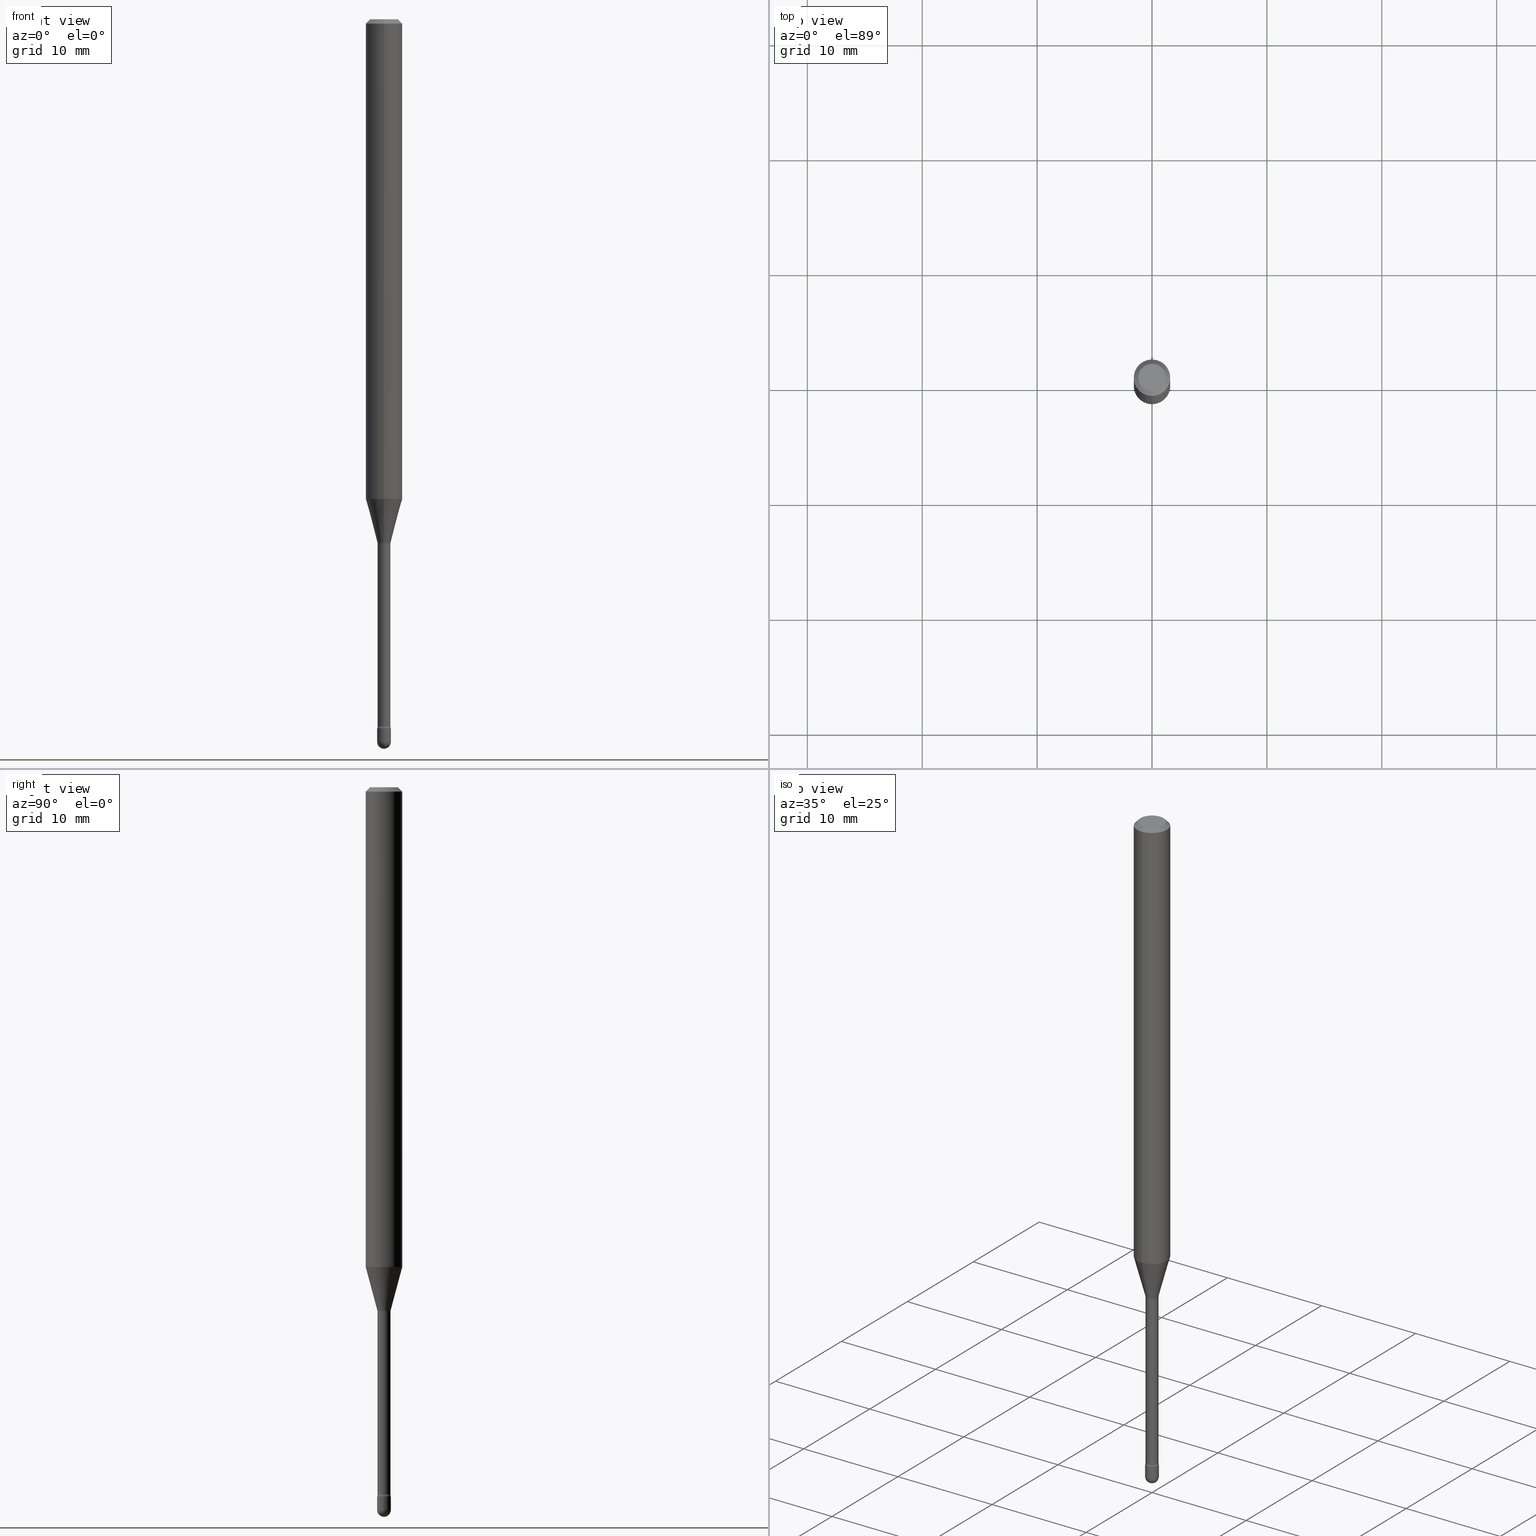
[diagram: canonical four-view strip — front | top / right | iso, engineering-drawing reading convention]
A machine part, canonical four-view strip (front | top / right | iso — engineering-drawing reading convention). The complete STEP part file that produces these views, byte-faithful:
ISO-10303-21;
HEADER;
FILE_DESCRIPTION (( 'STEP AP203' ),
    '1' );
FILE_NAME ('03922.STEP',
    '2024-04-09T21:11:27',
    ( '' ),
    ( '' ),
    'SwSTEP 2.0',
    'SolidWorks 2023',
    '' );
FILE_SCHEMA (( 'CONFIG_CONTROL_DESIGN' ));
ENDSEC;

DATA;
#1 = PERSON_AND_ORGANIZATION ( #202, #343 ) ;
#2 = ORIENTED_EDGE ( 'NONE', *, *, #292, .F. ) ;
#3 = DIRECTION ( 'NONE',  ( -6.982962677686266711E-15, -1.000000000000000000, 3.491503014300162724E-15 ) ) ;
#4 = VECTOR ( 'NONE', #22, 39.37007874015748143 ) ;
#5 = PRODUCT_RELATED_PRODUCT_CATEGORY ( 'detail', '', ( #532 ) ) ;
#6 = APPROVAL_DATE_TIME ( #47, #171 ) ;
#7 = CARTESIAN_POINT ( 'NONE',  ( -3.773273898774340269E-16, -0.04749999999999999362, 8.310039069192064887E-17 ) ) ;
#8 = DIRECTION ( 'NONE',  ( -6.982962677686265922E-15, -1.000000000000000000, 3.491503014300161935E-15 ) ) ;
#9 = EDGE_LOOP ( 'NONE', ( #392, #483, #331, #529 ) ) ;
#10 = EDGE_CURVE ( 'NONE', #177, #106, #382, .T. ) ;
#11 = EDGE_CURVE ( 'NONE', #189, #521, #554, .T. ) ;
#12 = CALENDAR_DATE ( 2024, 9, 4 ) ;
#13 = DIRECTION ( 'NONE',  ( -1.807323732225328562E-15, -0.2588190451025179639, 0.9659258262890689783 ) ) ;
#14 = VERTEX_POINT ( 'NONE', #7 ) ;
#15 = APPROVAL_ROLE ( '' ) ;
#16 = SPHERICAL_SURFACE ( 'NONE', #27, 0.02349999999999995148 ) ;
#17 = DIRECTION ( 'NONE',  ( -1.000000000000000000, 6.982962677686265922E-15, -4.883557194083112340E-29 ) ) ;
#18 = ORIENTED_EDGE ( 'NONE', *, *, #457, .T. ) ;
#19 = AXIS2_PLACEMENT_3D ( 'NONE', #367, #153, #357 ) ;
#20 = LOCAL_TIME ( 17, 11, 27.00000000000000000, #87 ) ;
#21 = DIRECTION ( 'NONE',  ( 1.839019923739599526E-15, 0.2588190451025248473, 0.9659258262890673130 ) ) ;
#22 = DIRECTION ( 'NONE',  ( -2.445453670294399760E-29, 3.491503014300162329E-15, 1.000000000000000000 ) ) ;
#23 = ORIENTED_EDGE ( 'NONE', *, *, #427, .T. ) ;
#24 =( NAMED_UNIT ( * ) PLANE_ANGLE_UNIT ( ) SI_UNIT ( $, .RADIAN. ) );
#25 = VERTEX_POINT ( 'NONE', #309 ) ;
#26 = CLOSED_SHELL ( 'NONE', ( #338, #364, #376, #165, #333, #244, #235, #507, #513, #64, #197, #536, #29, #313 ) ) ;
#27 = AXIS2_PLACEMENT_3D ( 'NONE', #535, #259, #312 ) ;
#28 = PRODUCT_DEFINITION ( 'UNKNOWN', '', #240, #308 ) ;
#29 = ADVANCED_FACE ( 'NONE', ( #232 ), #305, .T. ) ;
#30 = FACE_OUTER_BOUND ( 'NONE', #354, .T. ) ;
#31 = PERSON_AND_ORGANIZATION ( #202, #343 ) ;
#32 = DIRECTION ( 'NONE',  ( -6.982962677686265922E-15, -1.000000000000000000, 0.000000000000000000 ) ) ;
#33 = CC_DESIGN_DATE_AND_TIME_ASSIGNMENT ( #482, #360, ( #28 ) ) ;
#34 = CIRCLE ( 'NONE', #346, 0.02350000000000000352 ) ;
#35 = SECURITY_CLASSIFICATION ( '', '', #53 ) ;
#36 = DIRECTION ( 'NONE',  ( -2.445453670294399480E-29, 3.491503014300162329E-15, 1.000000000000000000 ) ) ;
#37 = ADVANCED_FACE ( 'NONE', ( #267 ), #564, .T. ) ;
#38 = CARTESIAN_POINT ( 'NONE',  ( 1.570299446030416374E-16, 0.02209999999999372536, -1.796974787463811118 ) ) ;
#39 = DIRECTION ( 'NONE',  ( -6.982962677686265922E-15, -1.000000000000000000, 4.370956789862821150E-15 ) ) ;
#40 = CIRCLE ( 'NONE', #251, 0.06250000000000000000 ) ;
#41 = DIRECTION ( 'NONE',  ( -2.445453670294399480E-29, 3.491503014300162329E-15, 1.000000000000000000 ) ) ;
#42 = CARTESIAN_POINT ( 'NONE',  ( 4.440892098500625669E-16, 0.06250000000000000000, 2.598544604974859177E-16 ) ) ;
#43 = FACE_OUTER_BOUND ( 'NONE', #196, .T. ) ;
#44 = DIRECTION ( 'NONE',  ( 6.982962677686265922E-15, 1.000000000000000000, -3.491503014300162329E-15 ) ) ;
#45 = FACE_OUTER_BOUND ( 'NONE', #485, .T. ) ;
#46 = EDGE_LOOP ( 'NONE', ( #347, #23, #336, #496 ) ) ;
#47 = DATE_AND_TIME ( #218, #79 ) ;
#48 = VERTEX_POINT ( 'NONE', #480 ) ;
#49 = CARTESIAN_POINT ( 'NONE',  ( 6.056203498517491033E-29, -8.646653535645050331E-15, -2.476500000000000146 ) ) ;
#50 = ORIENTED_EDGE ( 'NONE', *, *, #476, .F. ) ;
#51 = VECTOR ( 'NONE', #528, 39.37007874015748143 ) ;
#52 = EDGE_CURVE ( 'NONE', #97, #236, #522, .T. ) ;
#53 = SECURITY_CLASSIFICATION_LEVEL ( 'unclassified' ) ;
#54 = DIRECTION ( 'NONE',  ( -2.445453670294399480E-29, 3.491503014300162329E-15, 1.000000000000000000 ) ) ;
#55 = ORIENTED_EDGE ( 'NONE', *, *, #374, .T. ) ;
#56 = DIRECTION ( 'NONE',  ( -6.982962677686265922E-15, -1.000000000000000000, 3.491503014300162724E-15 ) ) ;
#57 = PERSON_AND_ORGANIZATION ( #202, #343 ) ;
#58 = DIRECTION ( 'NONE',  ( -2.445453670294399480E-29, 3.491503014300162329E-15, 1.000000000000000000 ) ) ;
#59 = DIRECTION ( 'NONE',  ( -6.982962677686265922E-15, -1.000000000000000000, 3.491503014300162724E-15 ) ) ;
#60 = ORIENTED_EDGE ( 'NONE', *, *, #10, .F. ) ;
#61 = LENGTH_MEASURE_WITH_UNIT ( LENGTH_MEASURE( 0.02539999999999999897 ), #493 );
#62 = PERSON_AND_ORGANIZATION ( #202, #343 ) ;
#63 = DIRECTION ( 'NONE',  ( 1.000000000000000000, -6.982962677686269866E-15, 0.000000000000000000 ) ) ;
#64 = ADVANCED_FACE ( 'NONE', ( #255 ), #439, .F. ) ;
#65 = EDGE_LOOP ( 'NONE', ( #499, #361, #314, #307 ) ) ;
#66 = AXIS2_PLACEMENT_3D ( 'NONE', #227, #17, #282 ) ;
#67 = LOCAL_TIME ( 17, 11, 27.00000000000000000, #95 ) ;
#68 = DIRECTION ( 'NONE',  ( 2.445453670294399480E-29, -3.491503014300162329E-15, -1.000000000000000000 ) ) ;
#69 = VERTEX_POINT ( 'NONE', #183 ) ;
#70 = VERTEX_POINT ( 'NONE', #134 ) ;
#71 = CIRCLE ( 'NONE', #19, 0.06250000000000000000 ) ;
#72 = CIRCLE ( 'NONE', #436, 0.06250000000000000000 ) ;
#73 = ADVANCED_FACE ( 'NONE', ( #101 ), #16, .T. ) ;
#74 = CARTESIAN_POINT ( 'NONE',  ( 0.02350000000000000699, -8.727830476773153796E-15, -2.476500000000000590 ) ) ;
#75 = PLANE ( 'NONE',  #231 ) ;
#76 = CARTESIAN_POINT ( 'NONE',  ( -4.364351673553912750E-16, -0.06250000000000005551, -0.01499999999999986587 ) ) ;
#77 = CC_DESIGN_PERSON_AND_ORGANIZATION_ASSIGNMENT ( #272, #526, ( #28 ) ) ;
#78 = AXIS2_PLACEMENT_3D ( 'NONE', #219, #527, #44 ) ;
#79 = LOCAL_TIME ( 17, 11, 27.00000000000000000, #212 ) ;
#80 = DIRECTION ( 'NONE',  ( 1.000000000000000000, -7.105427357601001070E-15, 4.926315773989872742E-29 ) ) ;
#81 = LINE ( 'NONE', #85, #156 ) ;
#82 = EDGE_LOOP ( 'NONE', ( #220, #327, #170, #370 ) ) ;
#83 = EDGE_CURVE ( 'NONE', #48, #14, #394, .T. ) ;
#84 = AXIS2_PLACEMENT_3D ( 'NONE', #195, #399, #102 ) ;
#85 = CARTESIAN_POINT ( 'NONE',  ( -0.02350000000000000352, 1.669775429036235687E-16, -1.155949746209903035E-30 ) ) ;
#86 = ORIENTED_EDGE ( 'NONE', *, *, #225, .T. ) ;
#87 = COORDINATED_UNIVERSAL_TIME_OFFSET ( 5, 0, .BEHIND. ) ;
#88 = ORIENTED_EDGE ( 'NONE', *, *, #113, .F. ) ;
#89 = DIRECTION ( 'NONE',  ( -2.445468806185136597E-29, 3.491481338843145583E-15, 1.000000000000000000 ) ) ;
#90 = ORIENTED_EDGE ( 'NONE', *, *, #457, .F. ) ;
#91 = CARTESIAN_POINT ( 'NONE',  ( 0.000000000000000000, 0.000000000000000000, 0.000000000000000000 ) ) ;
#92 = EDGE_CURVE ( 'NONE', #97, #525, #128, .T. ) ;
#93 = ORIENTED_EDGE ( 'NONE', *, *, #469, .F. ) ;
#94 = CARTESIAN_POINT ( 'NONE',  ( 3.023754139721142721E-16, 0.02261111260565773148, -1.793092501787273196 ) ) ;
#95 = COORDINATED_UNIVERSAL_TIME_OFFSET ( 5, 0, .BEHIND. ) ;
#96 = VECTOR ( 'NONE', #519, 39.37007874015748143 ) ;
#97 = VERTEX_POINT ( 'NONE', #406 ) ;
#98 = CARTESIAN_POINT ( 'NONE',  ( 6.056203498517492154E-29, -8.646653535645053486E-15, -2.476500000000000590 ) ) ;
#99 = APPROVAL_PERSON_ORGANIZATION ( #31, #171, #15 ) ;
#100 = ORIENTED_EDGE ( 'NONE', *, *, #395, .T. ) ;
#101 = FACE_OUTER_BOUND ( 'NONE', #65, .T. ) ;
#102 = DIRECTION ( 'NONE',  ( -6.982962677686265922E-15, -1.000000000000000000, 3.491503014300164301E-15 ) ) ;
#103 = VERTEX_POINT ( 'NONE', #187 ) ;
#104 = ORIENTED_EDGE ( 'NONE', *, *, #127, .T. ) ;
#105 = CARTESIAN_POINT ( 'NONE',  ( 5.924532826852824023E-29, -8.458767579426945041E-15, -2.422672283192177645 ) ) ;
#106 = VERTEX_POINT ( 'NONE', #243 ) ;
#107 = LINE ( 'NONE', #401, #451 ) ;
#108 = DIRECTION ( 'NONE',  ( -6.982962677686265922E-15, -1.000000000000000000, 3.491503014300162724E-15 ) ) ;
#109 = ORIENTED_EDGE ( 'NONE', *, *, #469, .T. ) ;
#110 = CIRCLE ( 'NONE', #423, 0.02210000000000008138 ) ;
#111 = AXIS2_PLACEMENT_3D ( 'NONE', #478, #89, #256 ) ;
#112 = ORIENTED_EDGE ( 'NONE', *, *, #114, .T. ) ;
#113 = EDGE_CURVE ( 'NONE', #525, #103, #281, .T. ) ;
#114 = EDGE_CURVE ( 'NONE', #185, #430, #155, .T. ) ;
#115 = APPLICATION_PROTOCOL_DEFINITION ( 'international standard', 'config_control_design', 1994, #348 ) ;
#116 = SPHERICAL_SURFACE ( 'NONE', #359, 0.02349999999999995148 ) ;
#117 = AXIS2_PLACEMENT_3D ( 'NONE', #298, #301, #32 ) ;
#118 = CARTESIAN_POINT ( 'NONE',  ( 4.440892098501030453E-16, 0.06249999999999995143, -0.01500000000000030129 ) ) ;
#119 = ORIENTED_EDGE ( 'NONE', *, *, #386, .T. ) ;
#120 = VECTOR ( 'NONE', #13, 39.37007874015749564 ) ;
#121 = CIRCLE ( 'NONE', #111, 0.02350000000000000699 ) ;
#122 = CARTESIAN_POINT ( 'NONE',  ( -1.543234751768667826E-16, -0.02210000000000004322, 5.552356155072798907E-16 ) ) ;
#123 = ORIENTED_EDGE ( 'NONE', *, *, #11, .T. ) ;
#124 = PERSON_AND_ORGANIZATION_ROLE ( 'design_owner' ) ;
#125 = CARTESIAN_POINT ( 'NONE',  ( 5.940006965145096755E-29, -8.480860821735094994E-15, -2.429000000000000270 ) ) ;
#126 = CARTESIAN_POINT ( 'NONE',  ( 4.384924639673054257E-29, -6.260587874909283975E-15, -1.793092501787273196 ) ) ;
#127 = EDGE_CURVE ( 'NONE', #185, #177, #194, .T. ) ;
#128 = CIRCLE ( 'NONE', #245, 0.02261111260566398690 ) ;
#129 = AXIS2_PLACEMENT_3D ( 'NONE', #389, #565, #169 ) ;
#130 = ORIENTED_EDGE ( 'NONE', *, *, #534, .T. ) ;
#131 = CARTESIAN_POINT ( 'NONE',  ( 4.384924639673054257E-29, -6.260587874909283975E-15, -1.793092501787273196 ) ) ;
#132 = EDGE_CURVE ( 'NONE', #25, #521, #538, .T. ) ;
#133 = ORIENTED_EDGE ( 'NONE', *, *, #509, .T. ) ;
#134 = CARTESIAN_POINT ( 'NONE',  ( -1.543234751768078153E-16, -0.02210000000000854337, -2.422672283192177645 ) ) ;
#135 = ORIENTED_EDGE ( 'NONE', *, *, #509, .F. ) ;
#136 = CARTESIAN_POINT ( 'NONE',  ( 5.924569496155794395E-29, -8.458715066898005273E-15, -2.422672283192177645 ) ) ;
#137 = COORDINATED_UNIVERSAL_TIME_OFFSET ( 5, 0, .BEHIND. ) ;
#138 = VECTOR ( 'NONE', #152, 39.37007874015748143 ) ;
#139 = EDGE_LOOP ( 'NONE', ( #100, #151, #488, #254 ) ) ;
#140 = CARTESIAN_POINT ( 'NONE',  ( 4.394445788243915811E-29, -6.274103936801524027E-15, -1.796974787463811118 ) ) ;
#141 = CC_DESIGN_APPROVAL ( #193, ( #35 ) ) ;
#142 = ORIENTED_EDGE ( 'NONE', *, *, #431, .T. ) ;
#143 = EDGE_LOOP ( 'NONE', ( #175, #368, #55, #104, #275 ) ) ;
#144 = DIRECTION ( 'NONE',  ( -6.982962677686265922E-15, -1.000000000000000000, 3.491503014300162724E-15 ) ) ;
#145 = ORIENTED_EDGE ( 'NONE', *, *, #446, .T. ) ;
#146 = ADVANCED_BREP_SHAPE_REPRESENTATION ( '03922', ( #247, #241, #283 ), #316 ) ;
#147 = ADVANCED_FACE ( 'NONE', ( #366 ), #116, .T. ) ;
#148 = DIRECTION ( 'NONE',  ( -6.982962677686265922E-15, -1.000000000000000000, 3.483106191921935554E-15 ) ) ;
#149 = PERSON_AND_ORGANIZATION_ROLE ( 'classification_officer' ) ;
#150 = FACE_OUTER_BOUND ( 'NONE', #537, .T. ) ;
#151 = ORIENTED_EDGE ( 'NONE', *, *, #557, .T. ) ;
#152 = DIRECTION ( 'NONE',  ( -2.445468806185136877E-29, 3.491481338843145188E-15, 1.000000000000000000 ) ) ;
#153 = DIRECTION ( 'NONE',  ( -2.445453670294399480E-29, 3.491503014300162329E-15, 1.000000000000000000 ) ) ;
#154 = ORIENTED_EDGE ( 'NONE', *, *, #238, .F. ) ;
#155 = CIRCLE ( 'NONE', #216, 0.02350000000000000699 ) ;
#156 = VECTOR ( 'NONE', #260, 39.37007874015748143 ) ;
#157 = DIRECTION ( 'NONE',  ( -1.000000000000000000, 6.982962677686265922E-15, -4.883557194083111780E-29 ) ) ;
#158 = ADVANCED_FACE ( 'NONE', ( #505 ), #198, .T. ) ;
#159 = AXIS2_PLACEMENT_3D ( 'NONE', #276, #447, #352 ) ;
#160 = CIRCLE ( 'NONE', #303, 0.01500000000000000291 ) ;
#161 = DIRECTION ( 'NONE',  ( -1.000000000000000000, 6.982962677686265922E-15, -4.883557194083112340E-29 ) ) ;
#162 = CYLINDRICAL_SURFACE ( 'NONE', #129, 0.06250000000000000000 ) ;
#163 = CONICAL_SURFACE ( 'NONE', #215, 0.06250000000000000000, 0.7853981633974483900 ) ;
#164 = CC_DESIGN_APPROVAL ( #171, ( #28 ) ) ;
#165 = ADVANCED_FACE ( 'NONE', ( #287 ), #163, .T. ) ;
#166 = CARTESIAN_POINT ( 'NONE',  ( -4.287811248607203282E-16, -0.06250000000000005551, -0.01499999999999986587 ) ) ;
#167 = DIRECTION ( 'NONE',  ( -6.982962677686265922E-15, -1.000000000000000000, 0.000000000000000000 ) ) ;
#168 = CARTESIAN_POINT ( 'NONE',  ( 0.000000000000000000, 0.000000000000000000, 0.000000000000000000 ) ) ;
#169 = DIRECTION ( 'NONE',  ( -6.982962677686265922E-15, -1.000000000000000000, 3.491503014300161935E-15 ) ) ;
#170 = ORIENTED_EDGE ( 'NONE', *, *, #372, .T. ) ;
#171 = APPROVAL ( #340, 'UNSPECIFIED' ) ;
#172 = AXIS2_PLACEMENT_3D ( 'NONE', #319, #453, #502 ) ;
#173 = LOCAL_TIME ( 17, 11, 27.00000000000000000, #402 ) ;
#174 = CALENDAR_DATE ( 2024, 9, 4 ) ;
#175 = ORIENTED_EDGE ( 'NONE', *, *, #446, .F. ) ;
#176 = LINE ( 'NONE', #206, #96 ) ;
#177 = VERTEX_POINT ( 'NONE', #506 ) ;
#178 = PERSON_AND_ORGANIZATION ( #202, #343 ) ;
#179 = ORIENTED_EDGE ( 'NONE', *, *, #225, .F. ) ;
#180 = ORIENTED_EDGE ( 'NONE', *, *, #419, .T. ) ;
#181 = DIRECTION ( 'NONE',  ( -2.445453670294399760E-29, 3.491503014300162329E-15, 1.000000000000000000 ) ) ;
#182 = PERSON_AND_ORGANIZATION_ROLE ( 'design_supplier' ) ;
#183 = CARTESIAN_POINT ( 'NONE',  ( -1.543234751768225325E-16, -0.02210000000000627435, -1.796974787463811118 ) ) ;
#184 = DIRECTION ( 'NONE',  ( -2.445453670294399480E-29, 3.491503014300162329E-15, 1.000000000000000000 ) ) ;
#185 = VERTEX_POINT ( 'NONE', #74 ) ;
#186 = DATE_TIME_ROLE ( 'classification_date' ) ;
#187 = CARTESIAN_POINT ( 'NONE',  ( 4.440892098501025523E-16, 0.06249999999999423378, -1.644225147374218210 ) ) ;
#188 = CARTESIAN_POINT ( 'NONE',  ( 5.940043730223697314E-29, -8.480808172050001970E-15, -2.429000000000000270 ) ) ;
#189 = VERTEX_POINT ( 'NONE', #553 ) ;
#190 = CARTESIAN_POINT ( 'NONE',  ( 0.000000000000000000, 0.000000000000000000, 0.000000000000000000 ) ) ;
#191 = CARTESIAN_POINT ( 'NONE',  ( -1.640996229255679148E-16, -0.02350000000000848632, -2.429000000000000270 ) ) ;
#192 = ORIENTED_EDGE ( 'NONE', *, *, #113, .T. ) ;
#193 = APPROVAL ( #351, 'UNSPECIFIED' ) ;
#194 = LINE ( 'NONE', #326, #138 ) ;
#195 = CARTESIAN_POINT ( 'NONE',  ( -1.169113584055446105E-44, 1.669184350826100908E-30, 4.780733988912460139E-16 ) ) ;
#196 = EDGE_LOOP ( 'NONE', ( #90, #237, #454, #531 ) ) ;
#197 = ADVANCED_FACE ( 'NONE', ( #30 ), #75, .F. ) ;
#198 = CYLINDRICAL_SURFACE ( 'NONE', #450, 0.02350000000000000352 ) ;
#199 = TOROIDAL_SURFACE ( 'NONE', #280, 0.03710000000000007736, 0.01499999999999999771 ) ;
#200 = AXIS2_PLACEMENT_3D ( 'NONE', #445, #263, #270 ) ;
#201 = DIRECTION ( 'NONE',  ( -2.445468806185136597E-29, 3.491481338843145583E-15, 1.000000000000000000 ) ) ;
#202 = PERSON ( 'UNSPECIFIED', 'UNSPECIFIED', 'UNSPECIFIED', ('UNSPECIFIED'), ('UNSPECIFIED'), ('UNSPECIFIED') ) ;
#203 = DIRECTION ( 'NONE',  ( -2.445453670294399480E-29, 3.491503014300162329E-15, 1.000000000000000000 ) ) ;
#204 = CARTESIAN_POINT ( 'NONE',  ( 1.640996229256866630E-16, 0.02349999999999152073, -2.429000000000000270 ) ) ;
#205 = EDGE_CURVE ( 'NONE', #297, #69, #293, .T. ) ;
#206 = CARTESIAN_POINT ( 'NONE',  ( 4.364351673553919652E-16, 0.06249999999999995143, -0.01500000000000030129 ) ) ;
#207 = VECTOR ( 'NONE', #556, 39.37007874015748143 ) ;
#208 = APPROVAL_PERSON_ORGANIZATION ( #178, #193, #221 ) ;
#209 = DIRECTION ( 'NONE',  ( -6.982962677686264344E-15, -1.000000000000000000, 0.000000000000000000 ) ) ;
#210 = DIRECTION ( 'NONE',  ( 1.000000000000000000, -7.105427357601001070E-15, 4.926315773989872742E-29 ) ) ;
#211 = DIRECTION ( 'NONE',  ( 6.982962677686265922E-15, 1.000000000000000000, 0.000000000000000000 ) ) ;
#212 = COORDINATED_UNIVERSAL_TIME_OFFSET ( 5, 0, .BEHIND. ) ;
#213 = CARTESIAN_POINT ( 'NONE',  ( 2.023442794181180636E-45, -2.889182795652346451E-31, -8.274600248733706275E-17 ) ) ;
#214 = EDGE_LOOP ( 'NONE', ( #2, #323, #481, #109 ) ) ;
#215 = AXIS2_PLACEMENT_3D ( 'NONE', #452, #68, #375 ) ;
#216 = AXIS2_PLACEMENT_3D ( 'NONE', #547, #201, #461 ) ;
#217 = CIRCLE ( 'NONE', #200, 0.02350000000000000352 ) ;
#218 = CALENDAR_DATE ( 2024, 9, 4 ) ;
#219 = CARTESIAN_POINT ( 'NONE',  ( 3.316907271900976096E-16, 0.04749999999999999362, 3.181730502269678861E-17 ) ) ;
#220 = ORIENTED_EDGE ( 'NONE', *, *, #503, .F. ) ;
#221 = APPROVAL_ROLE ( '' ) ;
#222 = DIRECTION ( 'NONE',  ( -6.982962677686265922E-15, -1.000000000000000000, 3.491503014300164301E-15 ) ) ;
#223 = CARTESIAN_POINT ( 'NONE',  ( -1.169113584055446105E-44, 1.669184350826100908E-30, 4.780733988912460139E-16 ) ) ;
#224 = ORIENTED_EDGE ( 'NONE', *, *, #427, .F. ) ;
#225 = EDGE_CURVE ( 'NONE', #542, #70, #486, .T. ) ;
#226 = DIRECTION ( 'NONE',  ( -6.982962677686265922E-15, -1.000000000000000000, 0.000000000000000000 ) ) ;
#227 = CARTESIAN_POINT ( 'NONE',  ( -2.590679153421165676E-16, -0.03710000000000628073, -1.796974787463811118 ) ) ;
#228 = VERTEX_POINT ( 'NONE', #558 ) ;
#229 =( CONVERSION_BASED_UNIT ( 'INCH', #61 ) LENGTH_UNIT ( ) NAMED_UNIT ( #411 ) );
#230 = DATE_AND_TIME ( #174, #67 ) ;
#231 = AXIS2_PLACEMENT_3D ( 'NONE', #204, #380, #562 ) ;
#232 = FACE_OUTER_BOUND ( 'NONE', #504, .T. ) ;
#233 = FACE_OUTER_BOUND ( 'NONE', #9, .T. ) ;
#234 = AXIS2_PLACEMENT_3D ( 'NONE', #125, #41, #302 ) ;
#235 = ADVANCED_FACE ( 'NONE', ( #471 ), #371, .T. ) ;
#236 = VERTEX_POINT ( 'NONE', #473 ) ;
#237 = ORIENTED_EDGE ( 'NONE', *, *, #92, .F. ) ;
#238 = EDGE_CURVE ( 'NONE', #70, #409, #500, .T. ) ;
#239 = AXIS2_PLACEMENT_3D ( 'NONE', #548, #184, #59 ) ;
#240 = PRODUCT_DEFINITION_FORMATION_WITH_SPECIFIED_SOURCE ( 'ANY', '', #532, .NOT_KNOWN. ) ;
#241 = MANIFOLD_SOLID_BREP ( 'Body-Move/Copy2[2]', #26 ) ;
#242 = CC_DESIGN_DATE_AND_TIME_ASSIGNMENT ( #230, #186, ( #35 ) ) ;
#243 = CARTESIAN_POINT ( 'NONE',  ( -0.02350000000000000352, -8.396753310943903641E-15, -2.429000000000000270 ) ) ;
#244 = ADVANCED_FACE ( 'NONE', ( #341 ), #459, .T. ) ;
#245 = AXIS2_PLACEMENT_3D ( 'NONE', #432, #58, #226 ) ;
#246 = TOROIDAL_SURFACE ( 'NONE', #335, 0.03710000000000007736, 0.01499999999999999771 ) ;
#247 = MANIFOLD_SOLID_BREP ( 'Body-Move/Copy2[1]', #264 ) ;
#248 = LINE ( 'NONE', #122, #207 ) ;
#249 = EDGE_CURVE ( 'NONE', #70, #69, #248, .T. ) ;
#250 = CARTESIAN_POINT ( 'NONE',  ( 2.636113549670411553E-16, 0.03709999999999373521, -1.796974787463811118 ) ) ;
#251 = AXIS2_PLACEMENT_3D ( 'NONE', #290, #462, #296 ) ;
#252 = AXIS2_PLACEMENT_3D ( 'NONE', #433, #472, #39 ) ;
#253 = APPLICATION_PROTOCOL_DEFINITION ( 'international standard', 'config_control_design', 1994, #426 ) ;
#254 = ORIENTED_EDGE ( 'NONE', *, *, #249, .F. ) ;
#255 = FACE_OUTER_BOUND ( 'NONE', #540, .T. ) ;
#256 = DIRECTION ( 'NONE',  ( 1.000000000000000000, -6.982962677686227268E-15, 0.000000000000000000 ) ) ;
#257 = DIRECTION ( 'NONE',  ( 0.000000000000000000, 0.000000000000000000, 1.000000000000000000 ) ) ;
#258 = SHAPE_DEFINITION_REPRESENTATION ( #437, #146 ) ;
#259 = DIRECTION ( 'NONE',  ( -1.000000000000000000, 6.982962677686265922E-15, -4.883557194083111780E-29 ) ) ;
#260 = DIRECTION ( 'NONE',  ( -2.445468806185136877E-29, 3.491481338843145188E-15, 1.000000000000000000 ) ) ;
#261 = ORIENTED_EDGE ( 'NONE', *, *, #292, .T. ) ;
#262 = CC_DESIGN_PERSON_AND_ORGANIZATION_ASSIGNMENT ( #391, #544, ( #240 ) ) ;
#263 = DIRECTION ( 'NONE',  ( -2.445453670294399480E-29, 3.491503014300162329E-15, 1.000000000000000000 ) ) ;
#264 = CLOSED_SHELL ( 'NONE', ( #37, #147, #350, #73, #158 ) ) ;
#265 = AXIS2_PLACEMENT_3D ( 'NONE', #126, #510, #167 ) ;
#266 = APPROVAL_ROLE ( '' ) ;
#267 = FACE_OUTER_BOUND ( 'NONE', #404, .T. ) ;
#268 = DIRECTION ( 'NONE',  ( -2.445468806185136597E-29, 3.491481338843145583E-15, 1.000000000000000000 ) ) ;
#269 = VERTEX_POINT ( 'NONE', #118 ) ;
#270 = DIRECTION ( 'NONE',  ( -6.982962677686265922E-15, -1.000000000000000000, 0.000000000000000000 ) ) ;
#271 = EDGE_CURVE ( 'NONE', #236, #103, #40, .T. ) ;
#272 = PERSON_AND_ORGANIZATION ( #202, #343 ) ;
#273 = DIRECTION ( 'NONE',  ( -6.982962677686266711E-15, -1.000000000000000000, 3.491503014300162724E-15 ) ) ;
#274 = LINE ( 'NONE', #530, #4 ) ;
#275 = ORIENTED_EDGE ( 'NONE', *, *, #386, .F. ) ;
#276 = CARTESIAN_POINT ( 'NONE',  ( 6.056203498517491033E-29, -8.646653535645050331E-15, -2.476500000000000146 ) ) ;
#277 = DIRECTION ( 'NONE',  ( -2.445453670294399480E-29, 3.491503014300162329E-15, 1.000000000000000000 ) ) ;
#278 = ORIENTED_EDGE ( 'NONE', *, *, #83, .T. ) ;
#279 = CARTESIAN_POINT ( 'NONE',  ( 3.668180505441619486E-31, -5.237254521450272361E-17, -0.01500000000000008271 ) ) ;
#280 = AXIS2_PLACEMENT_3D ( 'NONE', #362, #541, #144 ) ;
#281 = LINE ( 'NONE', #369, #523 ) ;
#282 = DIRECTION ( 'NONE',  ( -6.982962677686266711E-15, -1.000000000000000000, 0.000000000000000000 ) ) ;
#283 = AXIS2_PLACEMENT_3D ( 'NONE', #91, #257, #466 ) ;
#284 = ORIENTED_EDGE ( 'NONE', *, *, #205, .T. ) ;
#285 = DIRECTION ( 'NONE',  ( -2.445453670294399480E-29, 3.491503014300162329E-15, 1.000000000000000000 ) ) ;
#286 = VERTEX_POINT ( 'NONE', #76 ) ;
#287 = FACE_OUTER_BOUND ( 'NONE', #46, .T. ) ;
#288 = AXIS2_PLACEMENT_3D ( 'NONE', #344, #161, #209 ) ;
#289 = DIRECTION ( 'NONE',  ( 6.982962677686265922E-15, 1.000000000000000000, 0.000000000000000000 ) ) ;
#290 = CARTESIAN_POINT ( 'NONE',  ( 4.020876421436631309E-29, -5.740817058245210280E-15, -1.644225147374217988 ) ) ;
#291 = CC_DESIGN_PERSON_AND_ORGANIZATION_ASSIGNMENT ( #1, #124, ( #532 ) ) ;
#292 = EDGE_CURVE ( 'NONE', #542, #228, #160, .T. ) ;
#293 = CIRCLE ( 'NONE', #117, 0.02210000000000000159 ) ;
#294 = AXIS2_PLACEMENT_3D ( 'NONE', #393, #418, #365 ) ;
#295 = AXIS2_PLACEMENT_3D ( 'NONE', #131, #387, #563 ) ;
#296 = DIRECTION ( 'NONE',  ( -6.982962677686265922E-15, -1.000000000000000000, 4.370956789862821150E-15 ) ) ;
#297 = VERTEX_POINT ( 'NONE', #38 ) ;
#298 = CARTESIAN_POINT ( 'NONE',  ( 4.394418589429875621E-29, -6.274142887051290887E-15, -1.796974787463811118 ) ) ;
#299 = DIRECTION ( 'NONE',  ( -2.445453670294399480E-29, 3.491503014300162329E-15, 1.000000000000000000 ) ) ;
#300 = CC_DESIGN_PERSON_AND_ORGANIZATION_ASSIGNMENT ( #62, #149, ( #35 ) ) ;
#301 = DIRECTION ( 'NONE',  ( -2.445453670294399480E-29, 3.491503014300162329E-15, 1.000000000000000000 ) ) ;
#302 = DIRECTION ( 'NONE',  ( -6.982962677686265922E-15, -1.000000000000000000, 0.000000000000000000 ) ) ;
#303 = AXIS2_PLACEMENT_3D ( 'NONE', #467, #80, #425 ) ;
#304 = CIRCLE ( 'NONE', #421, 0.02349999999999995148 ) ;
#305 = CYLINDRICAL_SURFACE ( 'NONE', #560, 0.02210000000000004322 ) ;
#306 = FACE_OUTER_BOUND ( 'NONE', #82, .T. ) ;
#307 = ORIENTED_EDGE ( 'NONE', *, *, #374, .F. ) ;
#308 = DESIGN_CONTEXT ( 'detailed design', #348, 'design' ) ;
#309 = CARTESIAN_POINT ( 'NONE',  ( -0.02350000000000000699, -8.396753310943903641E-15, -2.476500000000000590 ) ) ;
#310 = CARTESIAN_POINT ( 'NONE',  ( 1.640996229256876491E-16, 0.02349999999999132991, -2.476500000000000590 ) ) ;
#311 = CARTESIAN_POINT ( 'NONE',  ( 1.620037437533624565E-16, 0.02209999999999162287, -2.422672283192177645 ) ) ;
#312 = DIRECTION ( 'NONE',  ( 6.982962677686265922E-15, 1.000000000000000000, 0.000000000000000000 ) ) ;
#313 = ADVANCED_FACE ( 'NONE', ( #43 ), #555, .F. ) ;
#314 = ORIENTED_EDGE ( 'NONE', *, *, #114, .F. ) ;
#315 = CIRCLE ( 'NONE', #66, 0.01500000000000002373 ) ;
#316 =( GEOMETRIC_REPRESENTATION_CONTEXT ( 3 ) GLOBAL_UNCERTAINTY_ASSIGNED_CONTEXT ( ( #390 ) ) GLOBAL_UNIT_ASSIGNED_CONTEXT ( ( #229, #24, #546 ) ) REPRESENTATION_CONTEXT ( 'NONE', 'WORKASPACE' ) );
#317 = APPROVAL_STATUS ( 'not_yet_approved' ) ;
#318 = DIRECTION ( 'NONE',  ( -2.445468806185136597E-29, 3.491481338843145583E-15, 1.000000000000000000 ) ) ;
#319 = CARTESIAN_POINT ( 'NONE',  ( 5.940043730223697314E-29, -8.480808172050001970E-15, -2.429000000000000270 ) ) ;
#320 = ORIENTED_EDGE ( 'NONE', *, *, #205, .F. ) ;
#321 = ORIENTED_EDGE ( 'NONE', *, *, #52, .T. ) ;
#322 = DIRECTION ( 'NONE',  ( -2.445468806185136597E-29, 3.491481338843145583E-15, 1.000000000000000000 ) ) ;
#323 = ORIENTED_EDGE ( 'NONE', *, *, #395, .F. ) ;
#324 = FACE_OUTER_BOUND ( 'NONE', #214, .T. ) ;
#325 = CC_DESIGN_PERSON_AND_ORGANIZATION_ASSIGNMENT ( #57, #182, ( #240 ) ) ;
#326 = CARTESIAN_POINT ( 'NONE',  ( 0.02350000000000000352, -1.640996229256272766E-16, 1.145901542312045115E-30 ) ) ;
#327 = ORIENTED_EDGE ( 'NONE', *, *, #470, .T. ) ;
#328 = CIRCLE ( 'NONE', #342, 0.02210000000000000159 ) ;
#329 = DIRECTION ( 'NONE',  ( -2.445468806185136597E-29, 3.491481338843145583E-15, 1.000000000000000000 ) ) ;
#330 = CIRCLE ( 'NONE', #295, 0.02261111260566398690 ) ;
#331 = ORIENTED_EDGE ( 'NONE', *, *, #520, .F. ) ;
#332 = EDGE_CURVE ( 'NONE', #269, #286, #71, .T. ) ;
#333 = ADVANCED_FACE ( 'NONE', ( #233 ), #353, .T. ) ;
#334 = AXIS2_PLACEMENT_3D ( 'NONE', #223, #416, #8 ) ;
#335 = AXIS2_PLACEMENT_3D ( 'NONE', #136, #285, #56 ) ;
#336 = ORIENTED_EDGE ( 'NONE', *, *, #520, .T. ) ;
#337 = EDGE_CURVE ( 'NONE', #97, #69, #315, .T. ) ;
#338 = ADVANCED_FACE ( 'NONE', ( #414 ), #410, .F. ) ;
#339 = DIRECTION ( 'NONE',  ( -6.982962677686265922E-15, -1.000000000000000000, 0.000000000000000000 ) ) ;
#340 = APPROVAL_STATUS ( 'not_yet_approved' ) ;
#341 = FACE_OUTER_BOUND ( 'NONE', #417, .T. ) ;
#342 = AXIS2_PLACEMENT_3D ( 'NONE', #516, #299, #514 ) ;
#343 = ORGANIZATION ( 'UNSPECIFIED', 'UNSPECIFIED', '' ) ;
#344 = CARTESIAN_POINT ( 'NONE',  ( -2.590679153421017765E-16, -0.03710000000000854281, -2.422672283192177645 ) ) ;
#345 = DIRECTION ( 'NONE',  ( 1.000000000000000000, -6.982962677686265922E-15, 4.876176775795935793E-29 ) ) ;
#346 = AXIS2_PLACEMENT_3D ( 'NONE', #188, #322, #495 ) ;
#347 = ORIENTED_EDGE ( 'NONE', *, *, #431, .F. ) ;
#348 = APPLICATION_CONTEXT ( 'configuration controlled 3d designs of mechanical parts and assemblies' ) ;
#349 = CARTESIAN_POINT ( 'NONE',  ( 5.940043730223697314E-29, -8.480808172050001970E-15, -2.429000000000000270 ) ) ;
#350 = ADVANCED_FACE ( 'NONE', ( #150 ), #484, .T. ) ;
#351 = APPROVAL_STATUS ( 'not_yet_approved' ) ;
#352 = DIRECTION ( 'NONE',  ( -7.105427357601001070E-15, -1.000000000000000000, 0.000000000000000000 ) ) ;
#353 = CYLINDRICAL_SURFACE ( 'NONE', #334, 0.06250000000000000000 ) ;
#354 = EDGE_LOOP ( 'NONE', ( #93, #449 ) ) ;
#355 = DATE_AND_TIME ( #12, #173 ) ;
#356 = ORIENTED_EDGE ( 'NONE', *, *, #127, .F. ) ;
#357 = DIRECTION ( 'NONE',  ( -6.982962677686265922E-15, -1.000000000000000000, 3.483106191921935554E-15 ) ) ;
#358 = ORIENTED_EDGE ( 'NONE', *, *, #92, .T. ) ;
#359 = AXIS2_PLACEMENT_3D ( 'NONE', #422, #157, #289 ) ;
#360 = DATE_TIME_ROLE ( 'creation_date' ) ;
#361 = ORIENTED_EDGE ( 'NONE', *, *, #492, .T. ) ;
#362 = CARTESIAN_POINT ( 'NONE',  ( 5.924569496155794395E-29, -8.458715066898005273E-15, -2.422672283192177645 ) ) ;
#363 = ORIENTED_EDGE ( 'NONE', *, *, #557, .F. ) ;
#364 = ADVANCED_FACE ( 'NONE', ( #455 ), #490, .T. ) ;
#365 = DIRECTION ( 'NONE',  ( 6.982962677686265922E-15, 1.000000000000000000, -3.483106191921935554E-15 ) ) ;
#366 = FACE_OUTER_BOUND ( 'NONE', #494, .T. ) ;
#367 = CARTESIAN_POINT ( 'NONE',  ( 3.668180505441619486E-31, -5.237254521450272361E-17, -0.01500000000000008271 ) ) ;
#368 = ORIENTED_EDGE ( 'NONE', *, *, #132, .T. ) ;
#369 = CARTESIAN_POINT ( 'NONE',  ( 1.606616180941255974E-16, 0.02261111260565772454, -1.793092501787273196 ) ) ;
#370 = ORIENTED_EDGE ( 'NONE', *, *, #332, .F. ) ;
#371 = CONICAL_SURFACE ( 'NONE', #265, 0.02261111260566398690, 0.2617993877991501295 ) ;
#372 = EDGE_CURVE ( 'NONE', #236, #286, #274, .T. ) ;
#373 = CARTESIAN_POINT ( 'NONE',  ( 6.056203498517492154E-29, -8.646653535645053486E-15, -2.476500000000000590 ) ) ;
#374 = EDGE_CURVE ( 'NONE', #521, #185, #435, .T. ) ;
#375 = DIRECTION ( 'NONE',  ( 6.982962677686265922E-15, 1.000000000000000000, -3.483106191921935554E-15 ) ) ;
#376 = ADVANCED_FACE ( 'NONE', ( #407 ), #199, .F. ) ;
#377 = DIRECTION ( 'NONE',  ( -6.982962677686265922E-15, -1.000000000000000000, 0.000000000000000000 ) ) ;
#378 = AXIS2_PLACEMENT_3D ( 'NONE', #98, #268, #440 ) ;
#379 = CIRCLE ( 'NONE', #234, 0.02350000000000000352 ) ;
#380 = DIRECTION ( 'NONE',  ( -2.445453670294399199E-29, 3.491503014300162329E-15, 1.000000000000000000 ) ) ;
#381 = DIRECTION ( 'NONE',  ( -2.445453670294399760E-29, 3.491503014300162329E-15, 1.000000000000000000 ) ) ;
#382 = CIRCLE ( 'NONE', #458, 0.02350000000000000352 ) ;
#383 = DIRECTION ( 'NONE',  ( -2.445453670294399480E-29, 3.491503014300162329E-15, 1.000000000000000000 ) ) ;
#384 = AXIS2_PLACEMENT_3D ( 'NONE', #168, #477, #345 ) ;
#385 = CC_DESIGN_APPROVAL ( #408, ( #240 ) ) ;
#386 = EDGE_CURVE ( 'NONE', #106, #177, #34, .T. ) ;
#387 = DIRECTION ( 'NONE',  ( -2.445453670294399480E-29, 3.491503014300162329E-15, 1.000000000000000000 ) ) ;
#388 = ORIENTED_EDGE ( 'NONE', *, *, #470, .F. ) ;
#389 = CARTESIAN_POINT ( 'NONE',  ( -1.169113584055446105E-44, 1.669184350826100908E-30, 4.780733988912460139E-16 ) ) ;
#390 = UNCERTAINTY_MEASURE_WITH_UNIT (LENGTH_MEASURE( 1.000000000000000082E-05 ), #229, 'distance_accuracy_value', 'NONE');
#391 = PERSON_AND_ORGANIZATION ( #202, #343 ) ;
#392 = ORIENTED_EDGE ( 'NONE', *, *, #271, .T. ) ;
#393 = CARTESIAN_POINT ( 'NONE',  ( 3.668180505441619486E-31, -5.237254521450272361E-17, -0.01500000000000008271 ) ) ;
#394 = CIRCLE ( 'NONE', #464, 0.04749999999999999362 ) ;
#395 = EDGE_CURVE ( 'NONE', #70, #542, #110, .T. ) ;
#396 = CIRCLE ( 'NONE', #465, 0.04749999999999999362 ) ;
#397 = CALENDAR_DATE ( 2024, 9, 4 ) ;
#398 = ORIENTED_EDGE ( 'NONE', *, *, #83, .F. ) ;
#399 = DIRECTION ( 'NONE',  ( -2.445453670294399480E-29, 3.491503014300162329E-15, 1.000000000000000000 ) ) ;
#400 = ORIENTED_EDGE ( 'NONE', *, *, #249, .T. ) ;
#401 = CARTESIAN_POINT ( 'NONE',  ( 1.570299446029824235E-16, 0.02210000000000004322, 4.009111822752123344E-16 ) ) ;
#402 = COORDINATED_UNIVERSAL_TIME_OFFSET ( 5, 0, .BEHIND. ) ;
#403 = CARTESIAN_POINT ( 'NONE',  ( -1.578925554262692203E-16, -0.02261111260567024925, -1.793092501787273196 ) ) ;
#404 = EDGE_LOOP ( 'NONE', ( #133, #145, #60, #356, #112 ) ) ;
#405 = APPROVAL_DATE_TIME ( #533, #408 ) ;
#406 = CARTESIAN_POINT ( 'NONE',  ( -1.578925554262692203E-16, -0.02261111260567024925, -1.793092501787273196 ) ) ;
#407 = FACE_OUTER_BOUND ( 'NONE', #456, .T. ) ;
#408 = APPROVAL ( #317, 'UNSPECIFIED' ) ;
#409 = VERTEX_POINT ( 'NONE', #191 ) ;
#410 = TOROIDAL_SURFACE ( 'NONE', #511, 0.03710000000000000797, 0.01500000000000002720 ) ;
#411 = DIMENSIONAL_EXPONENTS ( 1.000000000000000000, 0.000000000000000000, 0.000000000000000000, 0.000000000000000000, 0.000000000000000000, 0.000000000000000000, 0.000000000000000000 ) ;
#412 = APPROVAL_DATE_TIME ( #355, #193 ) ;
#413 = EDGE_CURVE ( 'NONE', #69, #297, #328, .T. ) ;
#414 = FACE_OUTER_BOUND ( 'NONE', #545, .T. ) ;
#415 = ORIENTED_EDGE ( 'NONE', *, *, #332, .T. ) ;
#416 = DIRECTION ( 'NONE',  ( -2.445453670294399480E-29, 3.491503014300162329E-15, 1.000000000000000000 ) ) ;
#417 = EDGE_LOOP ( 'NONE', ( #358, #192, #434, #515 ) ) ;
#418 = DIRECTION ( 'NONE',  ( 2.445453670294399480E-29, -3.491503014300162329E-15, -1.000000000000000000 ) ) ;
#419 = EDGE_CURVE ( 'NONE', #48, #269, #176, .T. ) ;
#420 = AXIS2_PLACEMENT_3D ( 'NONE', #463, #203, #377 ) ;
#421 = AXIS2_PLACEMENT_3D ( 'NONE', #49, #561, #211 ) ;
#422 = CARTESIAN_POINT ( 'NONE',  ( 6.056203498517491033E-29, -8.646653535645050331E-15, -2.476500000000000146 ) ) ;
#423 = AXIS2_PLACEMENT_3D ( 'NONE', #105, #277, #448 ) ;
#424 = MECHANICAL_CONTEXT ( 'NONE', #426, 'mechanical' ) ;
#425 = DIRECTION ( 'NONE',  ( 7.105427357600997914E-15, 1.000000000000000000, 0.000000000000000000 ) ) ;
#426 = APPLICATION_CONTEXT ( 'configuration controlled 3d designs of mechanical parts and assemblies' ) ;
#427 = EDGE_CURVE ( 'NONE', #14, #286, #517, .T. ) ;
#428 = AXIS2_PLACEMENT_3D ( 'NONE', #518, #36, #339 ) ;
#429 = LINE ( 'NONE', #42, #460 ) ;
#430 = VERTEX_POINT ( 'NONE', #310 ) ;
#431 = EDGE_CURVE ( 'NONE', #14, #48, #396, .T. ) ;
#432 = CARTESIAN_POINT ( 'NONE',  ( 4.384924639673054257E-29, -6.260587874909283975E-15, -1.793092501787273196 ) ) ;
#433 = CARTESIAN_POINT ( 'NONE',  ( 4.020876421436631309E-29, -5.740817058245210280E-15, -1.644225147374217988 ) ) ;
#434 = ORIENTED_EDGE ( 'NONE', *, *, #271, .F. ) ;
#435 = CIRCLE ( 'NONE', #378, 0.02350000000000000699 ) ;
#436 = AXIS2_PLACEMENT_3D ( 'NONE', #279, #543, #148 ) ;
#437 = PRODUCT_DEFINITION_SHAPE ( 'NONE', 'NONE',  #28 ) ;
#438 = CALENDAR_DATE ( 2024, 9, 4 ) ;
#439 = PLANE ( 'NONE',  #78 ) ;
#440 = DIRECTION ( 'NONE',  ( 1.000000000000000000, -6.982962677686227268E-15, 0.000000000000000000 ) ) ;
#441 = ORIENTED_EDGE ( 'NONE', *, *, #476, .T. ) ;
#442 = PERSON_AND_ORGANIZATION ( #202, #343 ) ;
#443 = DIRECTION ( 'NONE',  ( -2.445453670294399480E-29, 3.491503014300162329E-15, 1.000000000000000000 ) ) ;
#444 = ORIENTED_EDGE ( 'NONE', *, *, #10, .T. ) ;
#445 = CARTESIAN_POINT ( 'NONE',  ( 5.940006965145096755E-29, -8.480860821735094994E-15, -2.429000000000000270 ) ) ;
#446 = EDGE_CURVE ( 'NONE', #25, #106, #81, .T. ) ;
#447 = DIRECTION ( 'NONE',  ( -1.000000000000000000, 7.105427357601001070E-15, -4.926315508542082329E-29 ) ) ;
#448 = DIRECTION ( 'NONE',  ( -6.982962677686265922E-15, -1.000000000000000000, 0.000000000000000000 ) ) ;
#449 = ORIENTED_EDGE ( 'NONE', *, *, #534, .F. ) ;
#450 = AXIS2_PLACEMENT_3D ( 'NONE', #190, #501, #551 ) ;
#451 = VECTOR ( 'NONE', #181, 39.37007874015748143 ) ;
#452 = CARTESIAN_POINT ( 'NONE',  ( 3.668180505441619486E-31, -5.237254521450272361E-17, -0.01500000000000008271 ) ) ;
#453 = DIRECTION ( 'NONE',  ( -2.438088387897960049E-29, 3.491481338843145188E-15, 1.000000000000000000 ) ) ;
#454 = ORIENTED_EDGE ( 'NONE', *, *, #337, .T. ) ;
#455 = FACE_OUTER_BOUND ( 'NONE', #139, .T. ) ;
#456 = EDGE_LOOP ( 'NONE', ( #179, #261, #130, #154 ) ) ;
#457 = EDGE_CURVE ( 'NONE', #525, #297, #524, .T. ) ;
#458 = AXIS2_PLACEMENT_3D ( 'NONE', #349, #318, #63 ) ;
#459 = CONICAL_SURFACE ( 'NONE', #420, 0.02261111260566398690, 0.2617993877991501295 ) ;
#460 = VECTOR ( 'NONE', #381, 39.37007874015748143 ) ;
#461 = DIRECTION ( 'NONE',  ( 1.000000000000000000, -6.982962677686227268E-15, 0.000000000000000000 ) ) ;
#462 = DIRECTION ( 'NONE',  ( -2.445453670294399480E-29, 3.491503014300162329E-15, 1.000000000000000000 ) ) ;
#463 = CARTESIAN_POINT ( 'NONE',  ( 4.384924639673054257E-29, -6.260587874909283975E-15, -1.793092501787273196 ) ) ;
#464 = AXIS2_PLACEMENT_3D ( 'NONE', #213, #443, #273 ) ;
#465 = AXIS2_PLACEMENT_3D ( 'NONE', #468, #383, #3 ) ;
#466 = DIRECTION ( 'NONE',  ( 1.000000000000000000, 0.000000000000000000, 0.000000000000000000 ) ) ;
#467 = CARTESIAN_POINT ( 'NONE',  ( 2.636113549670569325E-16, 0.03709999999999161885, -2.422672283192177645 ) ) ;
#468 = CARTESIAN_POINT ( 'NONE',  ( 2.023442794181180636E-45, -2.889182795652346451E-31, -8.274600248733706275E-17 ) ) ;
#469 = EDGE_CURVE ( 'NONE', #409, #228, #379, .T. ) ;
#470 = EDGE_CURVE ( 'NONE', #103, #236, #512, .T. ) ;
#471 = FACE_OUTER_BOUND ( 'NONE', #566, .T. ) ;
#472 = DIRECTION ( 'NONE',  ( -2.445453670294399480E-29, 3.491503014300162329E-15, 1.000000000000000000 ) ) ;
#473 = CARTESIAN_POINT ( 'NONE',  ( -4.364351673553515854E-16, -0.06250000000000575928, -1.644225147374217544 ) ) ;
#474 = AXIS2_PLACEMENT_3D ( 'NONE', #373, #329, #552 ) ;
#475 = AXIS2_PLACEMENT_3D ( 'NONE', #250, #210, #559 ) ;
#476 = EDGE_CURVE ( 'NONE', #525, #97, #330, .T. ) ;
#477 = DIRECTION ( 'NONE',  ( -2.445468806185136597E-29, 3.491481338843145583E-15, 1.000000000000000000 ) ) ;
#478 = CARTESIAN_POINT ( 'NONE',  ( 6.056203498517492154E-29, -8.646653535645053486E-15, -2.476500000000000590 ) ) ;
#479 = ORIENTED_EDGE ( 'NONE', *, *, #337, .F. ) ;
#480 = CARTESIAN_POINT ( 'NONE',  ( 3.840629472727447874E-16, 0.04749999999999999362, -2.485923956665947867E-16 ) ) ;
#481 = ORIENTED_EDGE ( 'NONE', *, *, #238, .T. ) ;
#482 = DATE_AND_TIME ( #397, #487 ) ;
#483 = ORIENTED_EDGE ( 'NONE', *, *, #503, .T. ) ;
#484 = PLANE ( 'NONE',  #172 ) ;
#485 = EDGE_LOOP ( 'NONE', ( #224, #398, #180, #415 ) ) ;
#486 = CIRCLE ( 'NONE', #428, 0.02210000000000008138 ) ;
#487 = LOCAL_TIME ( 17, 11, 27.00000000000000000, #137 ) ;
#488 = ORIENTED_EDGE ( 'NONE', *, *, #413, .F. ) ;
#489 = CARTESIAN_POINT ( 'NONE',  ( -1.169113584055446105E-44, 1.669184350826100908E-30, 4.780733988912460139E-16 ) ) ;
#490 = CYLINDRICAL_SURFACE ( 'NONE', #84, 0.02210000000000004322 ) ;
#491 = ORIENTED_EDGE ( 'NONE', *, *, #132, .F. ) ;
#492 = EDGE_CURVE ( 'NONE', #189, #430, #304, .T. ) ;
#493 =( LENGTH_UNIT ( ) NAMED_UNIT ( * ) SI_UNIT ( $, .METRE. ) );
#494 = EDGE_LOOP ( 'NONE', ( #549, #123, #491, #135 ) ) ;
#495 = DIRECTION ( 'NONE',  ( 1.000000000000000000, -6.982962677686269866E-15, 0.000000000000000000 ) ) ;
#496 = ORIENTED_EDGE ( 'NONE', *, *, #419, .F. ) ;
#497 = CARTESIAN_POINT ( 'NONE',  ( -1.669775429035627771E-16, -0.02350000000000862510, -2.476500000000000590 ) ) ;
#498 = DIRECTION ( 'NONE',  ( -2.445453670294399480E-29, 3.491503014300162329E-15, 1.000000000000000000 ) ) ;
#499 = ORIENTED_EDGE ( 'NONE', *, *, #11, .F. ) ;
#500 = CIRCLE ( 'NONE', #288, 0.01500000000000000291 ) ;
#501 = DIRECTION ( 'NONE',  ( -2.445468806185136597E-29, 3.491481338843145583E-15, 1.000000000000000000 ) ) ;
#502 = DIRECTION ( 'NONE',  ( 1.000000000000000000, -6.982962677686265922E-15, 4.876176775795935793E-29 ) ) ;
#503 = EDGE_CURVE ( 'NONE', #103, #269, #429, .T. ) ;
#504 = EDGE_LOOP ( 'NONE', ( #363, #86, #400, #320 ) ) ;
#505 = FACE_OUTER_BOUND ( 'NONE', #143, .T. ) ;
#506 = CARTESIAN_POINT ( 'NONE',  ( 0.02350000000000000352, -8.644907794975628038E-15, -2.429000000000000270 ) ) ;
#507 = ADVANCED_FACE ( 'NONE', ( #306 ), #162, .T. ) ;
#508 = APPROVAL_PERSON_ORGANIZATION ( #442, #408, #266 ) ;
#509 = EDGE_CURVE ( 'NONE', #430, #25, #121, .T. ) ;
#510 = DIRECTION ( 'NONE',  ( -2.445453670294399480E-29, 3.491503014300162329E-15, 1.000000000000000000 ) ) ;
#511 = AXIS2_PLACEMENT_3D ( 'NONE', #140, #498, #108 ) ;
#512 = CIRCLE ( 'NONE', #252, 0.06250000000000000000 ) ;
#513 = ADVANCED_FACE ( 'NONE', ( #45 ), #550, .T. ) ;
#514 = DIRECTION ( 'NONE',  ( -6.982962677686265922E-15, -1.000000000000000000, 0.000000000000000000 ) ) ;
#515 = ORIENTED_EDGE ( 'NONE', *, *, #52, .F. ) ;
#516 = CARTESIAN_POINT ( 'NONE',  ( 4.394418589429875621E-29, -6.274142887051290887E-15, -1.796974787463811118 ) ) ;
#517 = LINE ( 'NONE', #166, #51 ) ;
#518 = CARTESIAN_POINT ( 'NONE',  ( 5.924532826852824023E-29, -8.458767579426945041E-15, -2.422672283192177645 ) ) ;
#519 = DIRECTION ( 'NONE',  ( 4.937700262164548042E-15, 0.7071067811865451302, -0.7071067811865499042 ) ) ;
#520 = EDGE_CURVE ( 'NONE', #286, #269, #72, .T. ) ;
#521 = VERTEX_POINT ( 'NONE', #497 ) ;
#522 = LINE ( 'NONE', #403, #120 ) ;
#523 = VECTOR ( 'NONE', #21, 39.37007874015747433 ) ;
#524 = CIRCLE ( 'NONE', #475, 0.01500000000000002373 ) ;
#525 = VERTEX_POINT ( 'NONE', #94 ) ;
#526 = PERSON_AND_ORGANIZATION_ROLE ( 'creator' ) ;
#527 = DIRECTION ( 'NONE',  ( 2.445453670294399199E-29, -3.491503014300162329E-15, -1.000000000000000000 ) ) ;
#528 = DIRECTION ( 'NONE',  ( -4.851104656540964275E-15, -0.7071067811865500152, -0.7071067811865450192 ) ) ;
#529 = ORIENTED_EDGE ( 'NONE', *, *, #372, .F. ) ;
#530 = CARTESIAN_POINT ( 'NONE',  ( -4.364351673553916201E-16, -0.06250000000000000000, 6.962923372850062088E-16 ) ) ;
#531 = ORIENTED_EDGE ( 'NONE', *, *, #413, .T. ) ;
#532 = PRODUCT ( '03922', '03922', '', ( #424 ) ) ;
#533 = DATE_AND_TIME ( #438, #20 ) ;
#534 = EDGE_CURVE ( 'NONE', #228, #409, #217, .T. ) ;
#535 = CARTESIAN_POINT ( 'NONE',  ( 6.056203498517491033E-29, -8.646653535645050331E-15, -2.476500000000000146 ) ) ;
#536 = ADVANCED_FACE ( 'NONE', ( #324 ), #246, .F. ) ;
#537 = EDGE_LOOP ( 'NONE', ( #444, #119 ) ) ;
#538 = CIRCLE ( 'NONE', #474, 0.02350000000000000699 ) ;
#539 = CC_DESIGN_SECURITY_CLASSIFICATION ( #35, ( #240 ) ) ;
#540 = EDGE_LOOP ( 'NONE', ( #278, #142 ) ) ;
#541 = DIRECTION ( 'NONE',  ( -2.445453670294399480E-29, 3.491503014300162329E-15, 1.000000000000000000 ) ) ;
#542 = VERTEX_POINT ( 'NONE', #311 ) ;
#543 = DIRECTION ( 'NONE',  ( -2.445453670294399480E-29, 3.491503014300162329E-15, 1.000000000000000000 ) ) ;
#544 = PERSON_AND_ORGANIZATION_ROLE ( 'creator' ) ;
#545 = EDGE_LOOP ( 'NONE', ( #50, #18, #284, #479 ) ) ;
#546 =( NAMED_UNIT ( * ) SI_UNIT ( $, .STERADIAN. ) SOLID_ANGLE_UNIT ( ) );
#547 = CARTESIAN_POINT ( 'NONE',  ( 6.056203498517492154E-29, -8.646653535645053486E-15, -2.476500000000000590 ) ) ;
#548 = CARTESIAN_POINT ( 'NONE',  ( 4.394445788243915811E-29, -6.274103936801524027E-15, -1.796974787463811118 ) ) ;
#549 = ORIENTED_EDGE ( 'NONE', *, *, #492, .F. ) ;
#550 = CONICAL_SURFACE ( 'NONE', #294, 0.06250000000000000000, 0.7853981633974483900 ) ;
#551 = DIRECTION ( 'NONE',  ( 1.000000000000000000, -6.982962677686265922E-15, 4.876176775795935793E-29 ) ) ;
#552 = DIRECTION ( 'NONE',  ( 1.000000000000000000, -6.982962677686227268E-15, 0.000000000000000000 ) ) ;
#553 = CARTESIAN_POINT ( 'NONE',  ( 6.114676835852627231E-29, -8.727264387118866723E-15, -2.500000000000000000 ) ) ;
#554 = CIRCLE ( 'NONE', #159, 0.02349999999999995148 ) ;
#555 = TOROIDAL_SURFACE ( 'NONE', #239, 0.03710000000000000797, 0.01500000000000002720 ) ;
#556 = DIRECTION ( 'NONE',  ( -2.445453670294399760E-29, 3.491503014300162329E-15, 1.000000000000000000 ) ) ;
#557 = EDGE_CURVE ( 'NONE', #542, #297, #107, .T. ) ;
#558 = CARTESIAN_POINT ( 'NONE',  ( 1.669775429036829552E-16, 0.02349999999999152420, -2.429000000000000270 ) ) ;
#559 = DIRECTION ( 'NONE',  ( 7.105427357601001859E-15, 1.000000000000000000, 0.000000000000000000 ) ) ;
#560 = AXIS2_PLACEMENT_3D ( 'NONE', #489, #54, #222 ) ;
#561 = DIRECTION ( 'NONE',  ( 1.000000000000000000, -6.982962677686265922E-15, 4.883557194083112340E-29 ) ) ;
#562 = DIRECTION ( 'NONE',  ( -6.982962677686265922E-15, -1.000000000000000000, 3.491503014300162329E-15 ) ) ;
#563 = DIRECTION ( 'NONE',  ( -6.982962677686265922E-15, -1.000000000000000000, 0.000000000000000000 ) ) ;
#564 = CYLINDRICAL_SURFACE ( 'NONE', #384, 0.02350000000000000352 ) ;
#565 = DIRECTION ( 'NONE',  ( -2.445453670294399480E-29, 3.491503014300162329E-15, 1.000000000000000000 ) ) ;
#566 = EDGE_LOOP ( 'NONE', ( #88, #441, #321, #388 ) ) ;
ENDSEC;
END-ISO-10303-21;
